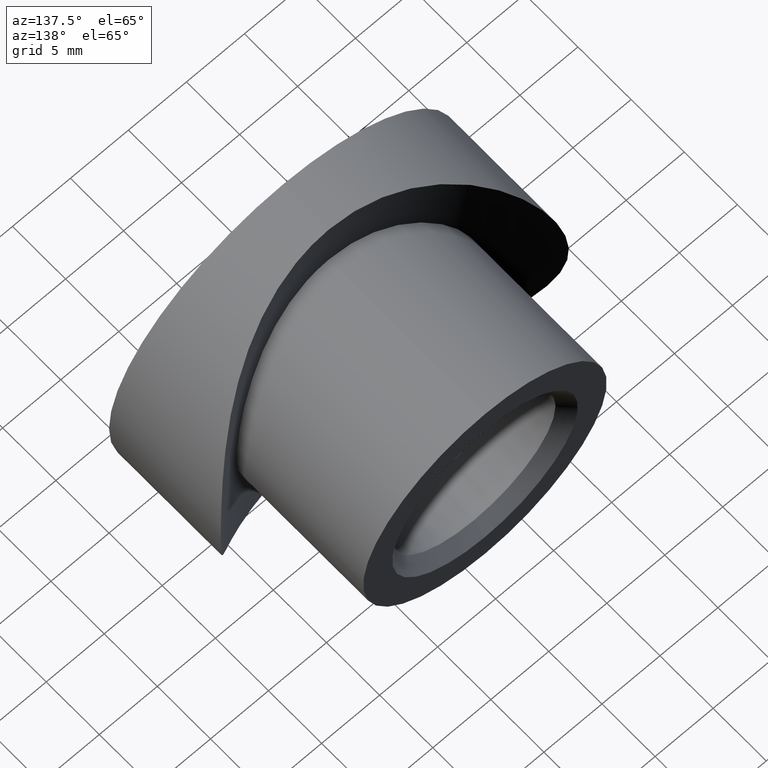
[diagram: clean part render]
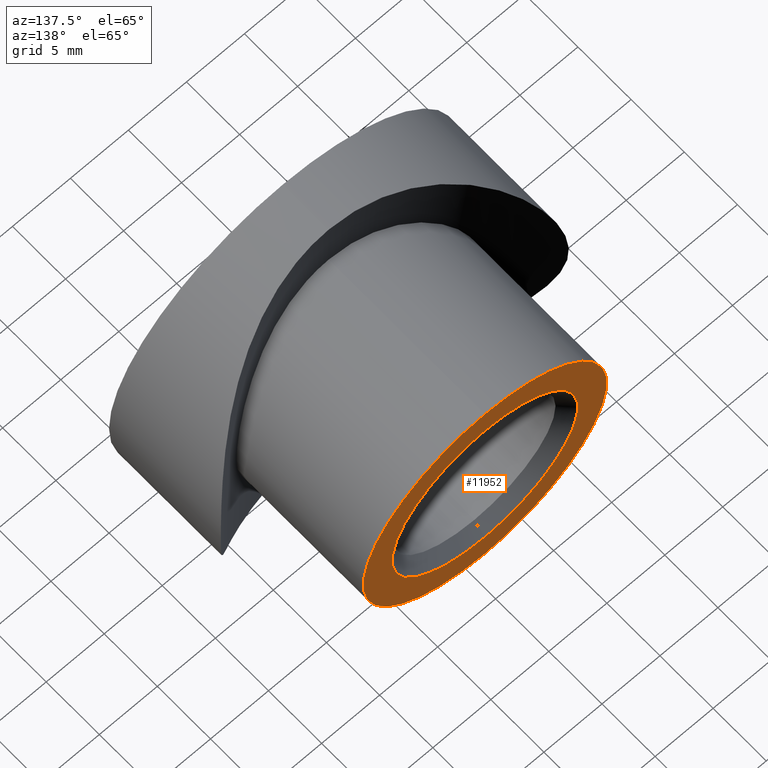
[diagram: same view with one face highlighted and labeled with its STEP entity id]
A machine part, auxiliary view. The second image highlights one B-rep face of the part: STEP entity #11952.
In plain terms, the highlighted planar face has unit normal (0, -1, 0).
Its self-contained STEP definition (entity closure, byte-faithful):
#166 = CARTESIAN_POINT ( 'NONE',  ( 0.0000000000000000000, 19.00000000000000000, -10.50000000000000000 ) ) ;
#1461 = CIRCLE ( 'NONE', #3108, 8.000000000000000000 ) ;
#1709 = DIRECTION ( 'NONE',  ( 0.0000000000000000000, 0.0000000000000000000, -1.000000000000000000 ) ) ;
#2359 = CIRCLE ( 'NONE', #11745, 8.000000000000000000 ) ;
#2635 = VERTEX_POINT ( 'NONE', #166 ) ;
#2691 = CARTESIAN_POINT ( 'NONE',  ( 0.0000000000000000000, 19.00000000000000000, 8.000000000000000000 ) ) ;
#2724 = DIRECTION ( 'NONE',  ( 0.0000000000000000000, -1.000000000000000000, 0.0000000000000000000 ) ) ;
#3108 = AXIS2_PLACEMENT_3D ( 'NONE', #10209, #2724, #12127 ) ;
#3121 = EDGE_CURVE ( 'NONE', #2635, #3693, #7619, .T. ) ;
#3693 = VERTEX_POINT ( 'NONE', #8109 ) ;
#3703 = CARTESIAN_POINT ( 'NONE',  ( 0.0000000000000000000, 19.00000000000000000, 0.0000000000000000000 ) ) ;
#4551 = EDGE_LOOP ( 'NONE', ( #9014, #9097 ) ) ;
#5000 = DIRECTION ( 'NONE',  ( 0.0000000000000000000, -1.000000000000000000, 0.0000000000000000000 ) ) ;
#5051 = CARTESIAN_POINT ( 'NONE',  ( 0.0000000000000000000, 19.00000000000000000, 0.0000000000000000000 ) ) ;
#5247 = AXIS2_PLACEMENT_3D ( 'NONE', #3703, #10197, #11164 ) ;
#5825 = AXIS2_PLACEMENT_3D ( 'NONE', #5903, #6998, #8086 ) ;
#5903 = CARTESIAN_POINT ( 'NONE',  ( 0.0000000000000000000, 19.00000000000000000, 0.0000000000000000000 ) ) ;
#6638 = CIRCLE ( 'NONE', #5247, 10.50000000000000000 ) ;
#6720 = EDGE_LOOP ( 'NONE', ( #8016, #8644 ) ) ;
#6998 = DIRECTION ( 'NONE',  ( 0.0000000000000000000, -1.000000000000000000, 0.0000000000000000000 ) ) ;
#7489 = FACE_BOUND ( 'NONE', #4551, .T. ) ;
#7619 = CIRCLE ( 'NONE', #5825, 10.50000000000000000 ) ;
#8016 = ORIENTED_EDGE ( 'NONE', *, *, #3121, .F. ) ;
#8086 = DIRECTION ( 'NONE',  ( 0.0000000000000000000, 0.0000000000000000000, -1.000000000000000000 ) ) ;
#8109 = CARTESIAN_POINT ( 'NONE',  ( 1.285879139104720800E-015, 19.00000000000000000, 10.50000000000000000 ) ) ;
#8644 = ORIENTED_EDGE ( 'NONE', *, *, #12524, .F. ) ;
#8792 = AXIS2_PLACEMENT_3D ( 'NONE', #5051, #5000, #10413 ) ;
#9014 = ORIENTED_EDGE ( 'NONE', *, *, #9202, .T. ) ;
#9097 = ORIENTED_EDGE ( 'NONE', *, *, #13480, .T. ) ;
#9202 = EDGE_CURVE ( 'NONE', #10190, #13583, #2359, .T. ) ;
#9328 = PLANE ( 'NONE',  #8792 ) ;
#10012 = FACE_OUTER_BOUND ( 'NONE', #6720, .T. ) ;
#10190 = VERTEX_POINT ( 'NONE', #2691 ) ;
#10197 = DIRECTION ( 'NONE',  ( 0.0000000000000000000, -1.000000000000000000, 0.0000000000000000000 ) ) ;
#10209 = CARTESIAN_POINT ( 'NONE',  ( 0.0000000000000000000, 19.00000000000000000, 0.0000000000000000000 ) ) ;
#10413 = DIRECTION ( 'NONE',  ( 0.0000000000000000000, -0.0000000000000000000, -1.000000000000000000 ) ) ;
#11052 = CARTESIAN_POINT ( 'NONE',  ( 0.0000000000000000000, 19.00000000000000000, 0.0000000000000000000 ) ) ;
#11164 = DIRECTION ( 'NONE',  ( 0.0000000000000000000, 0.0000000000000000000, -1.000000000000000000 ) ) ;
#11323 = DIRECTION ( 'NONE',  ( 0.0000000000000000000, -1.000000000000000000, 0.0000000000000000000 ) ) ;
#11745 = AXIS2_PLACEMENT_3D ( 'NONE', #11052, #11323, #1709 ) ;
#11952 = ADVANCED_FACE ( 'NONE', ( #7489, #10012 ), #9328, .F. ) ;
#12127 = DIRECTION ( 'NONE',  ( 0.0000000000000000000, 0.0000000000000000000, -1.000000000000000000 ) ) ;
#12524 = EDGE_CURVE ( 'NONE', #3693, #2635, #6638, .T. ) ;
#12544 = CARTESIAN_POINT ( 'NONE',  ( 9.797174393178825700E-016, 19.00000000000000000, -8.000000000000000000 ) ) ;
#13480 = EDGE_CURVE ( 'NONE', #13583, #10190, #1461, .T. ) ;
#13583 = VERTEX_POINT ( 'NONE', #12544 ) ;